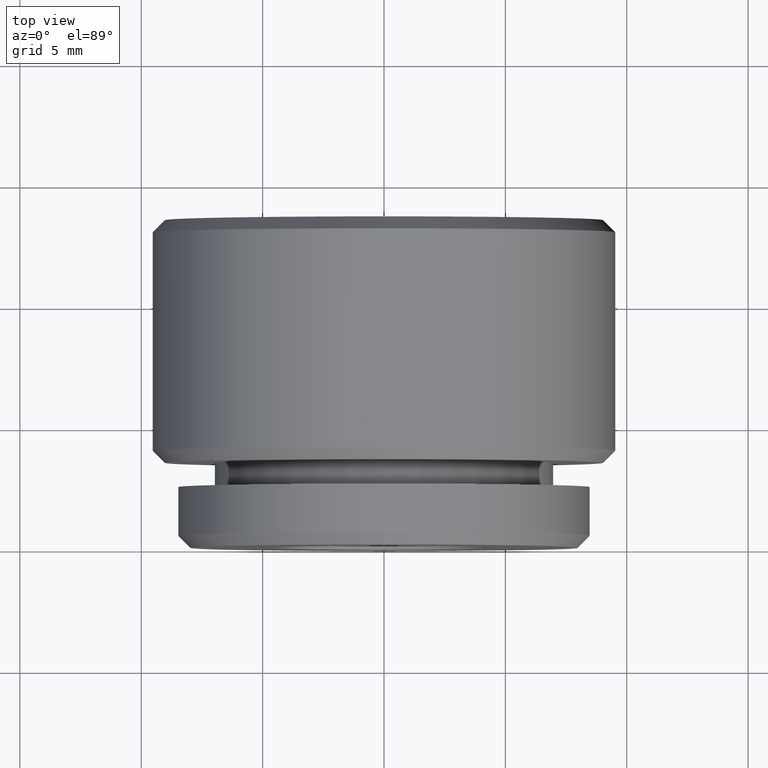
[diagram: clean part render]
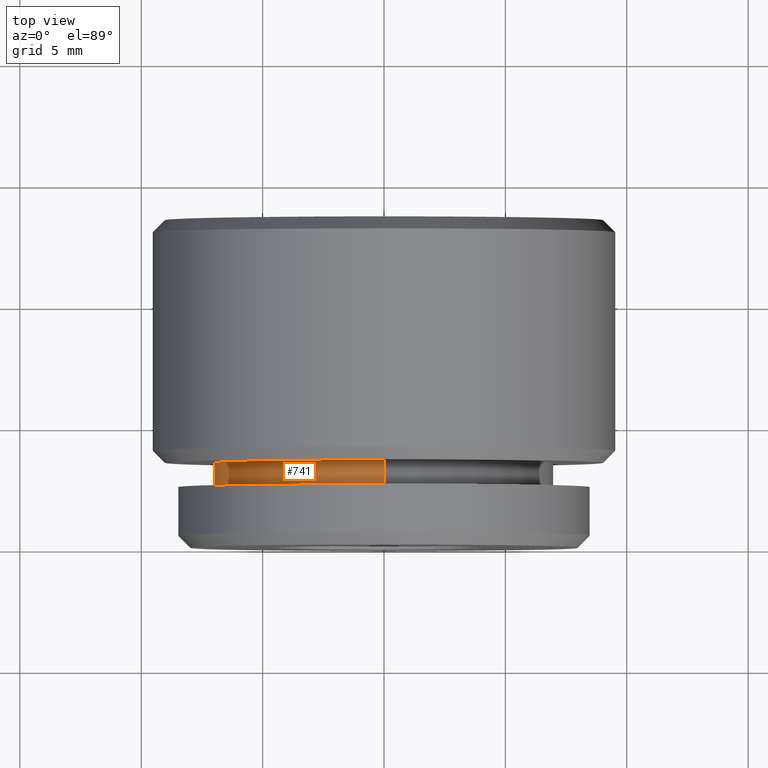
[diagram: same view with one face highlighted and labeled with its STEP entity id]
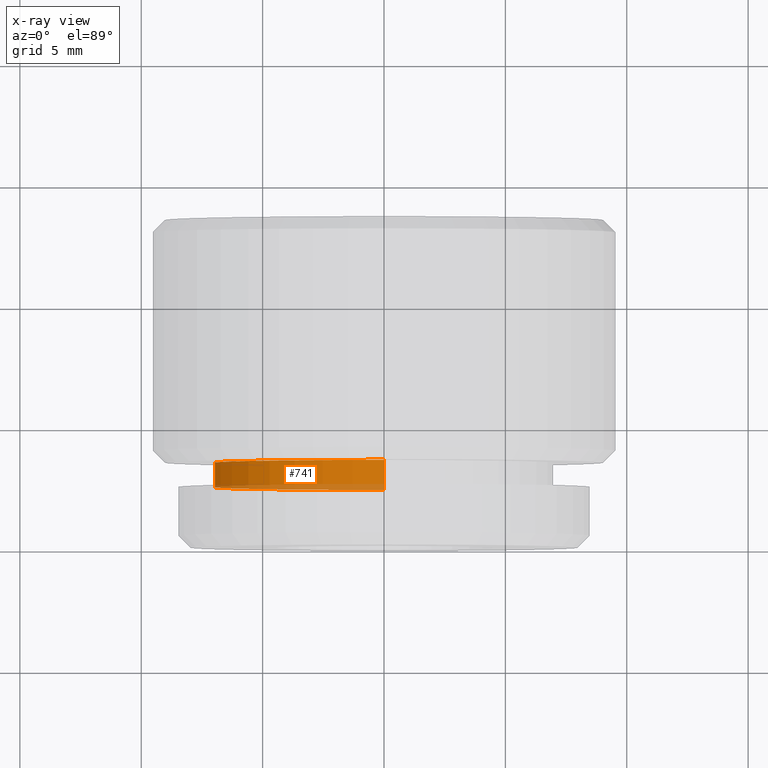
[diagram: x-ray of the same camera — body ghosted, the highlighted face saturated]
A machine part, top view. The second image highlights one B-rep face of the part: STEP entity #741.
The next image is the same camera in x-ray: the body ghosted, the highlighted face saturated — about 16% of this face is hidden behind the body in this view.
In plain terms, the highlighted cylindrical surface (partial cylindrical patch) has radius 7 mm, axis along (-0, -1, -0).
Its self-contained STEP definition (entity closure, byte-faithful):
#46 = LINE ( 'NONE', #668, #748 ) ;
#72 = LINE ( 'NONE', #553, #477 ) ;
#100 = VERTEX_POINT ( 'NONE', #456 ) ;
#210 = DIRECTION ( 'NONE',  ( 0.0000000000000000000, 0.0000000000000000000, -1.000000000000000000 ) ) ;
#211 = CARTESIAN_POINT ( 'NONE',  ( 8.572527594031473200E-016, 3.500000000000000000, 7.000000000000000000 ) ) ;
#212 = AXIS2_PLACEMENT_3D ( 'NONE', #345, #494, #210 ) ;
#240 = DIRECTION ( 'NONE',  ( -0.0000000000000000000, -1.000000000000000000, -0.0000000000000000000 ) ) ;
#259 = CARTESIAN_POINT ( 'NONE',  ( 0.0000000000000000000, 2.500000000000000000, 0.0000000000000000000 ) ) ;
#277 = AXIS2_PLACEMENT_3D ( 'NONE', #259, #497, #450 ) ;
#288 = EDGE_LOOP ( 'NONE', ( #329, #344, #848, #635 ) ) ;
#306 = EDGE_CURVE ( 'NONE', #100, #819, #46, .T. ) ;
#329 = ORIENTED_EDGE ( 'NONE', *, *, #739, .F. ) ;
#344 = ORIENTED_EDGE ( 'NONE', *, *, #623, .T. ) ;
#345 = CARTESIAN_POINT ( 'NONE',  ( 0.0000000000000000000, 0.0000000000000000000, 0.0000000000000000000 ) ) ;
#382 = AXIS2_PLACEMENT_3D ( 'NONE', #505, #240, #639 ) ;
#405 = VERTEX_POINT ( 'NONE', #559 ) ;
#418 = CIRCLE ( 'NONE', #382, 7.000000000000000000 ) ;
#427 = CIRCLE ( 'NONE', #277, 7.000000000000000900 ) ;
#444 = EDGE_CURVE ( 'NONE', #405, #819, #427, .T. ) ;
#450 = DIRECTION ( 'NONE',  ( 0.0000000000000000000, 0.0000000000000000000, -1.000000000000000000 ) ) ;
#456 = CARTESIAN_POINT ( 'NONE',  ( 0.0000000000000000000, 3.500000000000000000, -7.000000000000000000 ) ) ;
#477 = VECTOR ( 'NONE', #719, 1000.000000000000000 ) ;
#494 = DIRECTION ( 'NONE',  ( -0.0000000000000000000, -1.000000000000000000, -0.0000000000000000000 ) ) ;
#497 = DIRECTION ( 'NONE',  ( -0.0000000000000000000, -1.000000000000000000, -0.0000000000000000000 ) ) ;
#503 = CYLINDRICAL_SURFACE ( 'NONE', #212, 7.000000000000000900 ) ;
#505 = CARTESIAN_POINT ( 'NONE',  ( 0.0000000000000000000, 3.500000000000000000, 0.0000000000000000000 ) ) ;
#508 = DIRECTION ( 'NONE',  ( -0.0000000000000000000, -1.000000000000000000, -0.0000000000000000000 ) ) ;
#515 = VERTEX_POINT ( 'NONE', #211 ) ;
#553 = CARTESIAN_POINT ( 'NONE',  ( 8.572527594031474200E-016, 0.0000000000000000000, 7.000000000000000900 ) ) ;
#559 = CARTESIAN_POINT ( 'NONE',  ( 8.572527594031474200E-016, 2.500000000000000000, 7.000000000000000900 ) ) ;
#568 = FACE_OUTER_BOUND ( 'NONE', #288, .T. ) ;
#613 = CARTESIAN_POINT ( 'NONE',  ( 0.0000000000000000000, 2.500000000000000000, -7.000000000000000900 ) ) ;
#623 = EDGE_CURVE ( 'NONE', #515, #100, #418, .T. ) ;
#635 = ORIENTED_EDGE ( 'NONE', *, *, #444, .F. ) ;
#639 = DIRECTION ( 'NONE',  ( 0.0000000000000000000, 0.0000000000000000000, -1.000000000000000000 ) ) ;
#668 = CARTESIAN_POINT ( 'NONE',  ( 0.0000000000000000000, 0.0000000000000000000, -7.000000000000000900 ) ) ;
#719 = DIRECTION ( 'NONE',  ( -0.0000000000000000000, -1.000000000000000000, -0.0000000000000000000 ) ) ;
#739 = EDGE_CURVE ( 'NONE', #515, #405, #72, .T. ) ;
#741 = ADVANCED_FACE ( 'NONE', ( #568 ), #503, .T. ) ;
#748 = VECTOR ( 'NONE', #508, 1000.000000000000000 ) ;
#819 = VERTEX_POINT ( 'NONE', #613 ) ;
#848 = ORIENTED_EDGE ( 'NONE', *, *, #306, .T. ) ;